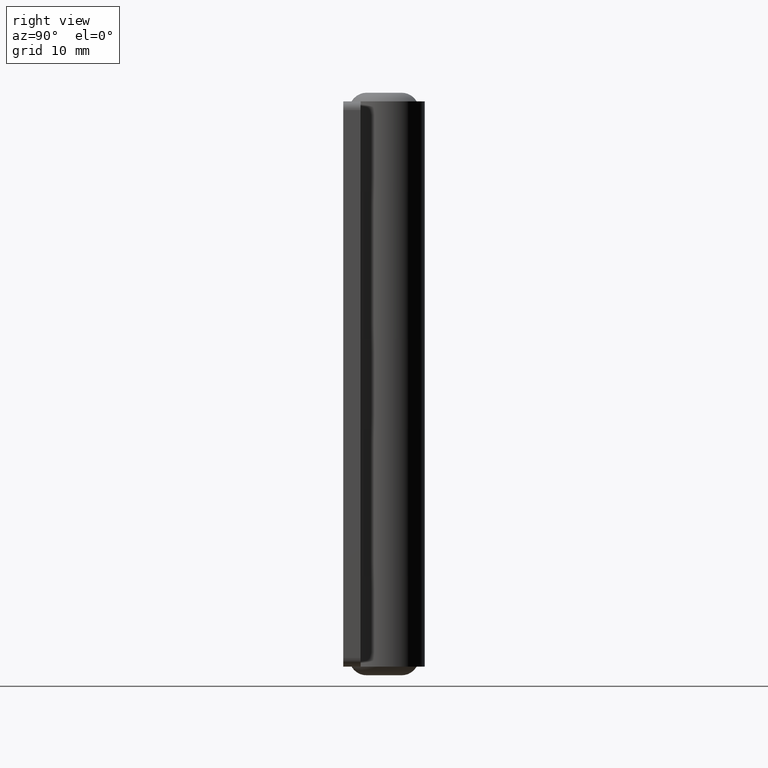
[diagram: clean part render]
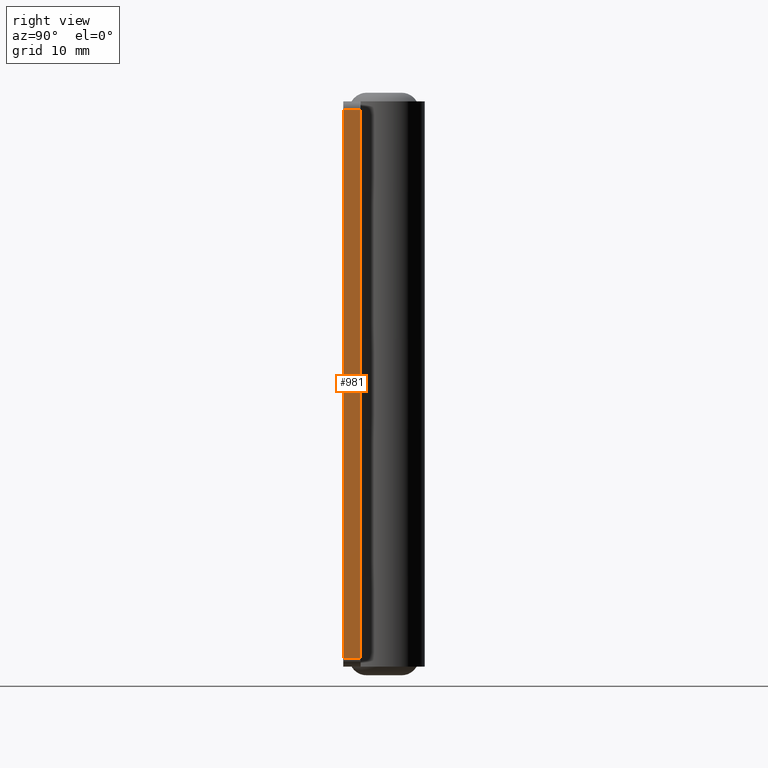
[diagram: same view with one face highlighted and labeled with its STEP entity id]
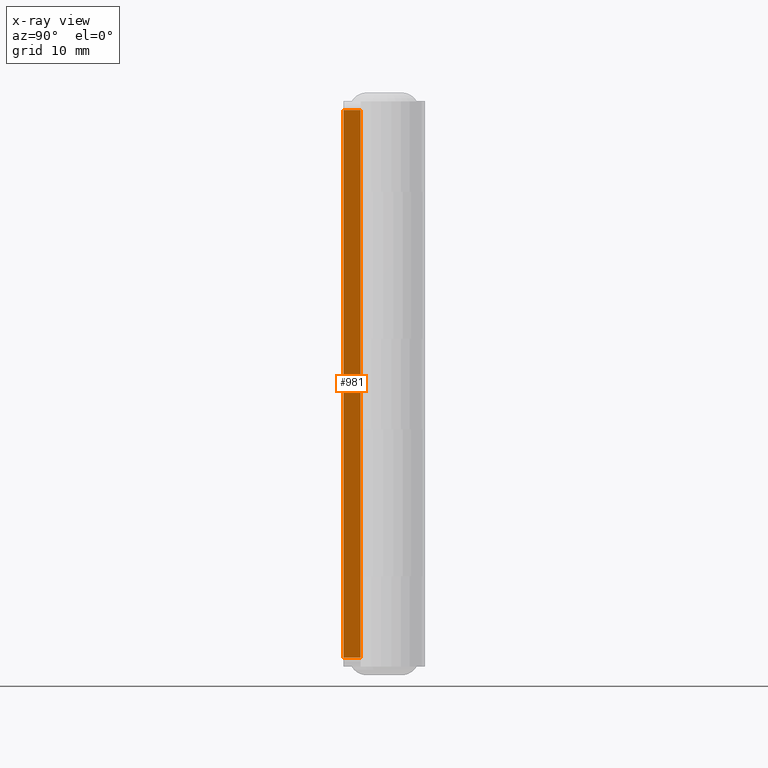
[diagram: x-ray of the same camera — body ghosted, the highlighted face saturated]
A machine part, right view. The second image highlights one B-rep face of the part: STEP entity #981.
The next image is the same camera in x-ray: the body ghosted, the highlighted face saturated — about 0% of this face is hidden behind the body in this view.
In plain terms, the highlighted planar face has unit normal (1, 0, 0).
Its self-contained STEP definition (entity closure, byte-faithful):
#72=PLANE('',#1071);
#119=FACE_OUTER_BOUND('',#188,.T.);
#188=EDGE_LOOP('',(#811,#812,#813,#814));
#264=LINE('',#1576,#350);
#265=LINE('',#1579,#351);
#266=LINE('',#1581,#352);
#267=LINE('',#1582,#353);
#350=VECTOR('',#1287,2.);
#351=VECTOR('',#1290,63.);
#352=VECTOR('',#1291,2.);
#353=VECTOR('',#1292,63.);
#489=VERTEX_POINT('',#1569);
#492=VERTEX_POINT('',#1574);
#493=VERTEX_POINT('',#1578);
#494=VERTEX_POINT('',#1580);
#606=EDGE_CURVE('',#492,#489,#264,.T.);
#607=EDGE_CURVE('',#492,#493,#265,.T.);
#608=EDGE_CURVE('',#494,#493,#266,.T.);
#609=EDGE_CURVE('',#489,#494,#267,.T.);
#811=ORIENTED_EDGE('',*,*,#606,.F.);
#812=ORIENTED_EDGE('',*,*,#607,.T.);
#813=ORIENTED_EDGE('',*,*,#608,.F.);
#814=ORIENTED_EDGE('',*,*,#609,.F.);
#981=ADVANCED_FACE('',(#119),#72,.T.);
#1071=AXIS2_PLACEMENT_3D('',#1577,#1288,#1289);
#1287=DIRECTION('',(0.,1.,0.));
#1288=DIRECTION('center_axis',(-1.,0.,0.));
#1289=DIRECTION('ref_axis',(0.,-1.,0.));
#1290=DIRECTION('',(0.,0.,1.));
#1291=DIRECTION('',(0.,-1.,0.));
#1292=DIRECTION('',(0.,0.,1.));
#1569=CARTESIAN_POINT('',(-25.,1.99999999999999,-31.5));
#1574=CARTESIAN_POINT('',(-25.,-7.49400541621981E-15,-31.5));
#1576=CARTESIAN_POINT('',(-25.,1.65128592529688,-31.5));
#1577=CARTESIAN_POINT('Origin',(-25.,1.99999999999999,0.));
#1578=CARTESIAN_POINT('',(-25.,-7.49400541621981E-15,31.5));
#1579=CARTESIAN_POINT('',(-25.,-7.49400541621981E-15,0.));
#1580=CARTESIAN_POINT('',(-25.,1.99999999999999,31.5));
#1581=CARTESIAN_POINT('',(-25.,1.65128592529688,31.5));
#1582=CARTESIAN_POINT('',(-25.,1.99999999999999,0.));